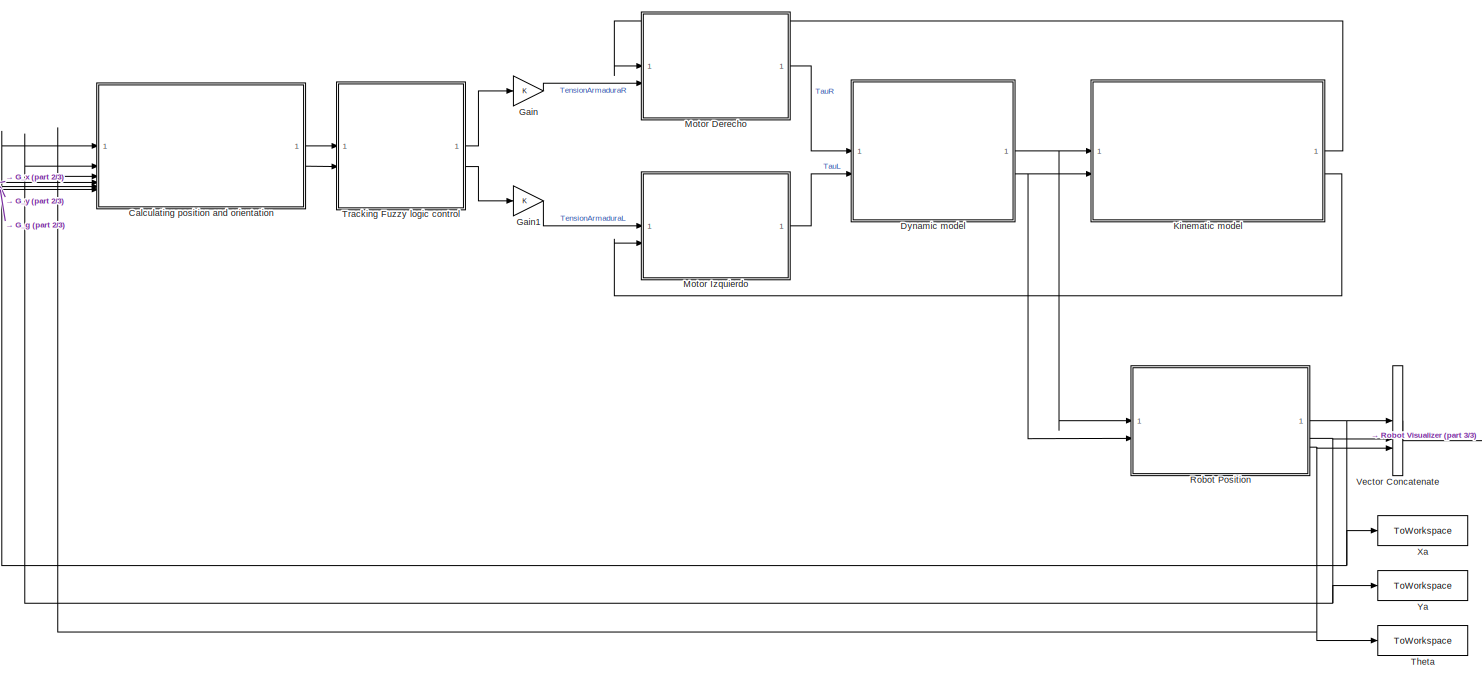
[diagram: root canvas - part 1/3, most of the canvas]
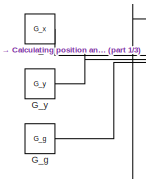
[diagram: root canvas - part 2/3, middle left region]
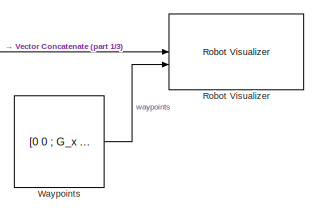
[diagram: root canvas - part 3/3, bottom right region]
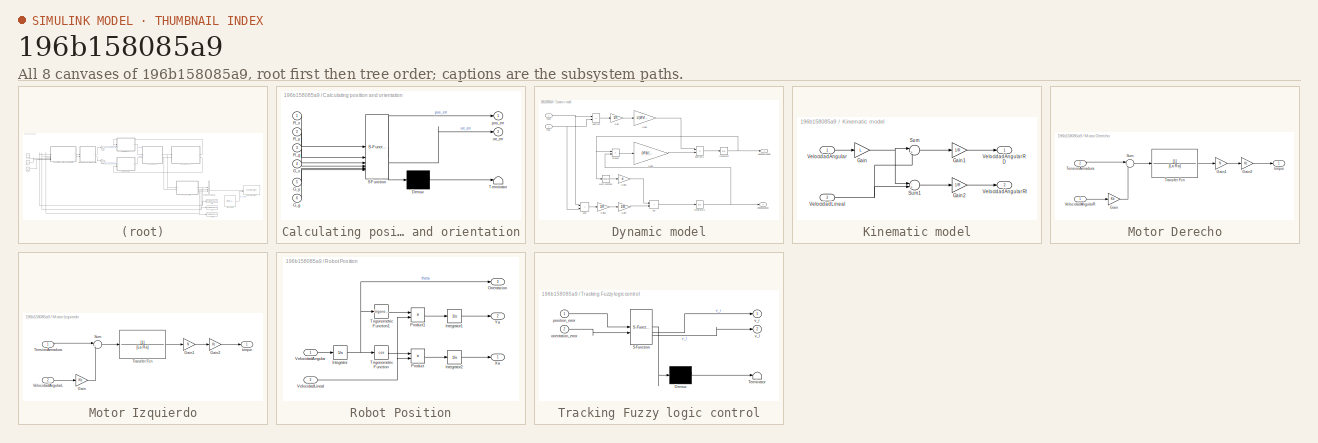
[diagram: thumbnail index - all 8 canvases of the model, root first then tree order]
MODEL slx_196b158085a9
KIND model
CONFIG AbsTol = auto
CONFIG EnableMultiTasking = off
CONFIG FixedStep = auto
CONFIG MaxStep = auto
CONFIG MinStep = auto
CONFIG RelTol = 1e-3
CONFIG SampleTimeConstraint = Unconstrained
CONFIG SolverName = VariableStepAuto
CONFIG StartTime = 0.0
CONFIG StopTime = 40.0
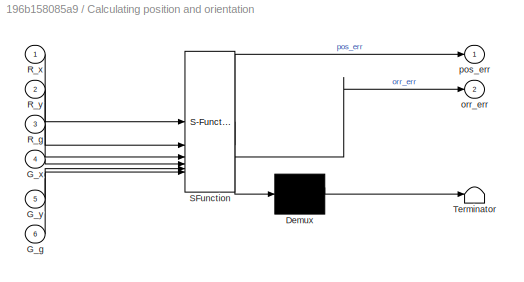
BLOCK [SubSystem] Calculating position and orientation
  ErrorFcn = Stateflow.Translate.translate
  LibrarySourceBlock = simulink/User-Defined\nFunctions/MATLAB Function
  PermitHierarchicalResolution = ExplicitOnly
  SFBlockType = MATLAB Function
  TreatAsAtomicUnit = on
BLOCK [Demux] Calculating position and orientation/ Demux 
  Outputs = 1
BLOCK [S-Function] Calculating position and orientation/ SFunction 
  EnableBusSupport = on
  FunctionName = sf_sfun
  PortCounts = [6 3]
  SFcnIsStateOwnerBlock = off
  SFunctionDeploymentMode = off
  Tag = Stateflow S-Function 2
BLOCK [Terminator] Calculating position and orientation/ Terminator 
BLOCK [Inport] Calculating position and orientation/G_g
  Port = 6
BLOCK [Inport] Calculating position and orientation/G_x
  Port = 4
BLOCK [Inport] Calculating position and orientation/G_y
  Port = 5
BLOCK [Inport] Calculating position and orientation/R_g
  Port = 3
BLOCK [Inport] Calculating position and orientation/R_x
BLOCK [Inport] Calculating position and orientation/R_y
  Port = 2
BLOCK [Outport] Calculating position and orientation/orr_err
  Port = 2
BLOCK [Outport] Calculating position and orientation/pos_err
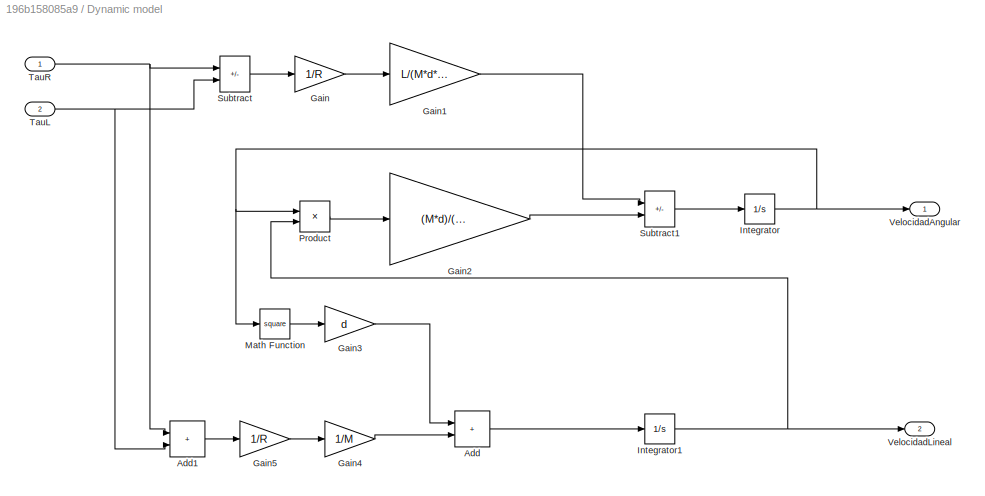
BLOCK [SubSystem] Dynamic model
BLOCK [Sum] Dynamic model/Add
  IconShape = rectangular
BLOCK [Sum] Dynamic model/Add1
  IconShape = rectangular
BLOCK [Gain] Dynamic model/Gain
  Gain = 1/R
BLOCK [Gain] Dynamic model/Gain1
  Gain = L/(M*d*d+J)
BLOCK [Gain] Dynamic model/Gain2
  Gain = (M*d)/(M*d*d+J)
BLOCK [Gain] Dynamic model/Gain3
  Gain = d
BLOCK [Gain] Dynamic model/Gain4
  Gain = 1/M
BLOCK [Gain] Dynamic model/Gain5
  Gain = 1/R
BLOCK [Integrator] Dynamic model/Integrator
BLOCK [Integrator] Dynamic model/Integrator1
BLOCK [Math] Dynamic model/Math Function
  Operator = square
BLOCK [Product] Dynamic model/Product
BLOCK [Sum] Dynamic model/Subtract
  IconShape = rectangular
  Inputs = +-
BLOCK [Sum] Dynamic model/Subtract1
  IconShape = rectangular
  Inputs = +-
BLOCK [Inport] Dynamic model/TauL
  IconDisplay = Port number and signal name
  Port = 2
BLOCK [Inport] Dynamic model/TauR
  IconDisplay = Port number and signal name
BLOCK [Outport] Dynamic model/VelocidadAngular
BLOCK [Outport] Dynamic model/VelocidadLineal
  Port = 2
BLOCK [Constant] G_g
  Value = G_g
BLOCK [Constant] G_x
  Value = G_x
BLOCK [Constant] G_y
  Value = G_y
BLOCK [Gain] Gain
BLOCK [Gain] Gain1
BLOCK [SubSystem] Kinematic model
BLOCK [Gain] Kinematic model/Gain
  Gain = L
BLOCK [Gain] Kinematic model/Gain1
  Gain = 1/R
BLOCK [Gain] Kinematic model/Gain2
  Gain = 1/R
BLOCK [Sum] Kinematic model/Sum
  Inputs = |++
BLOCK [Sum] Kinematic model/Sum1
  Inputs = -+
BLOCK [Inport] Kinematic model/VelocidadAngular
BLOCK [Outport] Kinematic model/VelocidadAngularRD
BLOCK [Outport] Kinematic model/VelocidadAngularRI
  Port = 2
BLOCK [Inport] Kinematic model/VelocidadLineal
  Port = 2
BLOCK [SubSystem] Motor Derecho
BLOCK [Gain] Motor Derecho/Gain
  Gain = Kb
BLOCK [Gain] Motor Derecho/Gain1
  Gain = N
BLOCK [Gain] Motor Derecho/Gain2
  Gain = Kt
BLOCK [Sum] Motor Derecho/Sum
  Inputs = |+-
BLOCK [Inport] Motor Derecho/TensionArmadura
  Port = 2
BLOCK [TransferFcn] Motor Derecho/Transfer Fcn
  Denominator = [La Ra]
BLOCK [Inport] Motor Derecho/VelocidadAngularR
BLOCK [Outport] Motor Derecho/torque
BLOCK [SubSystem] Motor Izquierdo
BLOCK [Gain] Motor Izquierdo/Gain
  Gain = Kb
BLOCK [Gain] Motor Izquierdo/Gain1
  Gain = N
BLOCK [Gain] Motor Izquierdo/Gain2
  Gain = Kt
BLOCK [Sum] Motor Izquierdo/Sum
  Inputs = |+-
BLOCK [Inport] Motor Izquierdo/TensionArmadura
BLOCK [TransferFcn] Motor Izquierdo/Transfer Fcn
  Denominator = [La Ra]
BLOCK [Inport] Motor Izquierdo/VelocidadAngularL
  Port = 2
BLOCK [Outport] Motor Izquierdo/torque
BLOCK [SubSystem] Robot Position
BLOCK [Integrator] Robot Position/Integrator
BLOCK [Integrator] Robot Position/Integrator1
BLOCK [Integrator] Robot Position/Integrator2
BLOCK [Outport] Robot Position/Orientacion
  Port = 3
BLOCK [Product] Robot Position/Product
BLOCK [Product] Robot Position/Product1
BLOCK [Trigonometry] Robot Position/Trigonometric Function
  Operator = cos
BLOCK [Trigonometry] Robot Position/Trigonometric Function1
BLOCK [Inport] Robot Position/VelocidadAngular
BLOCK [Inport] Robot Position/VelocidadLineal
  Port = 2
BLOCK [Outport] Robot Position/Xa
BLOCK [Outport] Robot Position/Ya
  Port = 2
BLOCK [Reference] Robot Visualizer  REF=mobileRoboticsLib/Environments/Robot Visualizer
  SourceBlock = mobileRoboticsLib/Environments/Robot Visualizer
  SourceProductName = Mobile Robotics Simulation Toolbox
  SourceType = Visualizer2D
BLOCK [ToWorkspace] Theta
  FixptAsFi = on
  MaxDataPoints = inf
  SampleTime = -1
  Save2DSignal = 2-D array (concatenate along first dimension)
  SaveFormat = Timeseries
  VariableName = theta
BLOCK [SubSystem] Tracking Fuzzy logic control
  ErrorFcn = Stateflow.Translate.translate
  LibrarySourceBlock = simulink/User-Defined\nFunctions/MATLAB Function
  PermitHierarchicalResolution = ExplicitOnly
  SFBlockType = MATLAB Function
  TreatAsAtomicUnit = on
BLOCK [Demux] Tracking Fuzzy logic control/ Demux 
  Outputs = 1
BLOCK [S-Function] Tracking Fuzzy logic control/ SFunction 
  EnableBusSupport = on
  FunctionName = sf_sfun
  PortCounts = [2 3]
  SFcnIsStateOwnerBlock = off
  SFunctionDeploymentMode = off
  Tag = Stateflow S-Function 1
BLOCK [Terminator] Tracking Fuzzy logic control/ Terminator 
BLOCK [Inport] Tracking Fuzzy logic control/orientation_error
  Port = 2
BLOCK [Inport] Tracking Fuzzy logic control/position_error
BLOCK [Outport] Tracking Fuzzy logic control/v_l
  Port = 2
BLOCK [Outport] Tracking Fuzzy logic control/v_r
BLOCK [Concatenate] Vector Concatenate
  NumInputs = 3
BLOCK [Constant] Waypoints
  Value = [0 0 ; G_x  G_y]
BLOCK [ToWorkspace] Xa
  FixptAsFi = on
  MaxDataPoints = inf
  SampleTime = -1
  Save2DSignal = 2-D array (concatenate along first dimension)
  SaveFormat = Timeseries
  VariableName = xa
BLOCK [ToWorkspace] Ya
  FixptAsFi = on
  MaxDataPoints = inf
  SampleTime = -1
  Save2DSignal = 2-D array (concatenate along first dimension)
  SaveFormat = Timeseries
  VariableName = ya
LINE Calculating position and orientation:1 -> Tracking Fuzzy logic control:1
LINE Calculating position and orientation:2 -> Tracking Fuzzy logic control:2
LINE Dynamic model/Add1:1 -> Dynamic model/Gain5:1
LINE Dynamic model/Add:1 -> Dynamic model/Integrator1:1
LINE Dynamic model/Gain1:1 -> Dynamic model/Subtract1:1
LINE Dynamic model/Gain2:1 -> Dynamic model/Subtract1:2
LINE Dynamic model/Gain3:1 -> Dynamic model/Add:1
LINE Dynamic model/Gain4:1 -> Dynamic model/Add:2
LINE Dynamic model/Gain5:1 -> Dynamic model/Gain4:1
LINE Dynamic model/Gain:1 -> Dynamic model/Gain1:1
NET Dynamic model/Integrator1:1 -> Dynamic model/Product:2, Dynamic model/VelocidadLineal:1
NET Dynamic model/Integrator:1 -> Dynamic model/Math Function:1, Dynamic model/Product:1, Dynamic model/VelocidadAngular:1
LINE Dynamic model/Math Function:1 -> Dynamic model/Gain3:1
LINE Dynamic model/Product:1 -> Dynamic model/Gain2:1
LINE Dynamic model/Subtract1:1 -> Dynamic model/Integrator:1
LINE Dynamic model/Subtract:1 -> Dynamic model/Gain:1
NET Dynamic model/TauL:1 -> Dynamic model/Add1:2, Dynamic model/Subtract:2
NET Dynamic model/TauR:1 -> Dynamic model/Add1:1, Dynamic model/Subtract:1
NET Dynamic model:1 -> Kinematic model:1, Robot Position:1
NET Dynamic model:2 -> Kinematic model:2, Robot Position:2
LINE G_g:1 -> Calculating position and orientation:6
LINE G_x:1 -> Calculating position and orientation:4
LINE G_y:1 -> Calculating position and orientation:5
LINE Gain1:1 -> Motor Izquierdo:1
LINE Gain:1 -> Motor Derecho:2
LINE Kinematic model/Gain1:1 -> Kinematic model/VelocidadAngularRD:1
LINE Kinematic model/Gain2:1 -> Kinematic model/VelocidadAngularRI:1
NET Kinematic model/Gain:1 -> Kinematic model/Sum1:1, Kinematic model/Sum:1
LINE Kinematic model/Sum1:1 -> Kinematic model/Gain2:1
LINE Kinematic model/Sum:1 -> Kinematic model/Gain1:1
LINE Kinematic model/VelocidadAngular:1 -> Kinematic model/Gain:1
NET Kinematic model/VelocidadLineal:1 -> Kinematic model/Sum1:2, Kinematic model/Sum:2
LINE Kinematic model:1 -> Motor Derecho:1
LINE Kinematic model:2 -> Motor Izquierdo:2
LINE Motor Derecho/Gain1:1 -> Motor Derecho/Gain2:1
LINE Motor Derecho/Gain2:1 -> Motor Derecho/torque:1
LINE Motor Derecho/Gain:1 -> Motor Derecho/Sum:2
LINE Motor Derecho/Sum:1 -> Motor Derecho/Transfer Fcn:1
LINE Motor Derecho/TensionArmadura:1 -> Motor Derecho/Sum:1
LINE Motor Derecho/Transfer Fcn:1 -> Motor Derecho/Gain1:1
LINE Motor Derecho/VelocidadAngularR:1 -> Motor Derecho/Gain:1
LINE Motor Derecho:1 -> Dynamic model:1
LINE Motor Izquierdo/Gain1:1 -> Motor Izquierdo/Gain2:1
LINE Motor Izquierdo/Gain2:1 -> Motor Izquierdo/torque:1
LINE Motor Izquierdo/Gain:1 -> Motor Izquierdo/Sum:2
LINE Motor Izquierdo/Sum:1 -> Motor Izquierdo/Transfer Fcn:1
LINE Motor Izquierdo/TensionArmadura:1 -> Motor Izquierdo/Sum:1
LINE Motor Izquierdo/Transfer Fcn:1 -> Motor Izquierdo/Gain1:1
LINE Motor Izquierdo/VelocidadAngularL:1 -> Motor Izquierdo/Gain:1
LINE Motor Izquierdo:1 -> Dynamic model:2
LINE Robot Position/Integrator1:1 -> Robot Position/Ya:1
LINE Robot Position/Integrator2:1 -> Robot Position/Xa:1
NET Robot Position/Integrator:1 -> Robot Position/Orientacion:1, Robot Position/Trigonometric Function1:1, Robot Position/Trigonometric Function:1
LINE Robot Position/Product1:1 -> Robot Position/Integrator1:1
LINE Robot Position/Product:1 -> Robot Position/Integrator2:1
LINE Robot Position/Trigonometric Function1:1 -> Robot Position/Product1:1
LINE Robot Position/Trigonometric Function:1 -> Robot Position/Product:1
LINE Robot Position/VelocidadAngular:1 -> Robot Position/Integrator:1
NET Robot Position/VelocidadLineal:1 -> Robot Position/Product1:2, Robot Position/Product:2
NET Robot Position:1 -> Calculating position and orientation:1, Vector Concatenate:1, Xa:1
NET Robot Position:2 -> Calculating position and orientation:2, Vector Concatenate:2, Ya:1
NET Robot Position:3 -> Calculating position and orientation:3, Theta:1, Vector Concatenate:3
LINE Tracking Fuzzy logic control:1 -> Gain:1
LINE Tracking Fuzzy logic control:2 -> Gain1:1
LINE Vector Concatenate:1 -> Robot Visualizer:1
LINE Waypoints:1 -> Robot Visualizer:2
note: NET lines group one-source signal fan-out (src -> all destinations, sorted); 1:1 wires keep LINE
CHART Tracking Fuzzy logic control states=1 transitions=1
  STATE_LABEL 'eML_blk_kernel()'
  STATE_LABEL 'SCRIPT:\nfunction [v_r,v_l] = tflc(position_error,orientation_error)\n    %% global constant\n    %TFLC RULES\n    rules_TFLC_L = [\n    1 1 1 1 3 3 4;\n    2 2 1 2 3 5 6;\n    2 2 2 3 5 6 7;\n    1 1 1 4 6 6 7;\n    2 2 3 5 5 6 7;\n    1 1 4 6 5 6 7;\n    2 2 3 7 5 6 7\n    ];\n    rules_TFLC_R = flip(rules_TFLC_L,2);\n    %OAFLC RULES\n    rules_OAFLC_R_L = [\n    1 1; 2 1; 2 1; 1 1; 2 1; 2 1; 1 1; 2 1; 2 1;\n  ...<+3608ch>'
CHART Calculating position and orientation states=1 transitions=1
  STATE_LABEL 'eML_blk_kernel()'
  STATE_LABEL 'SCRIPT:\nfunction [pos_err,orr_err] = pos_orr_err(R_x, R_y, R_g, G_x, G_y, G_g)\n    %values assignment\n    rob_poss = [R_x; R_y]; %in meter\n    gol_poss = [G_x; G_y]; %in meter\n    gamma_r = R_g;         %in radian\n%     % convert radian to -pi to pi values\n%     if gamma_r>pi\n%         gamma_r = gamma_r-2*pi;\n%     elseif gamma_r<pi\n%         gamma_r = gamma_r+2*pi;\n%     end\n\n    %position error\n...<+456ch>'
CHART  states=0 transitions=0
CHART  states=0 transitions=0
